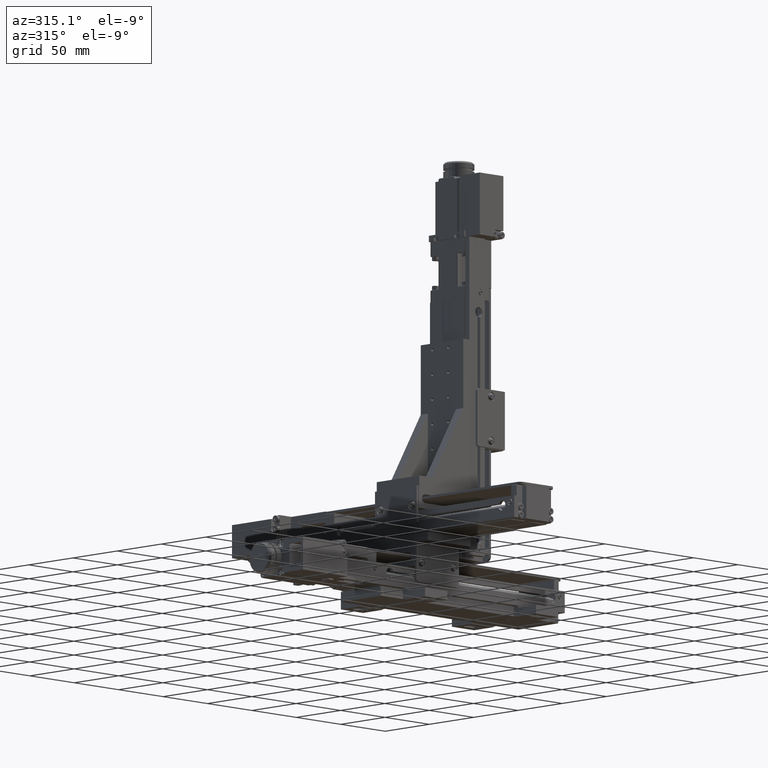
[diagram: clean part render]
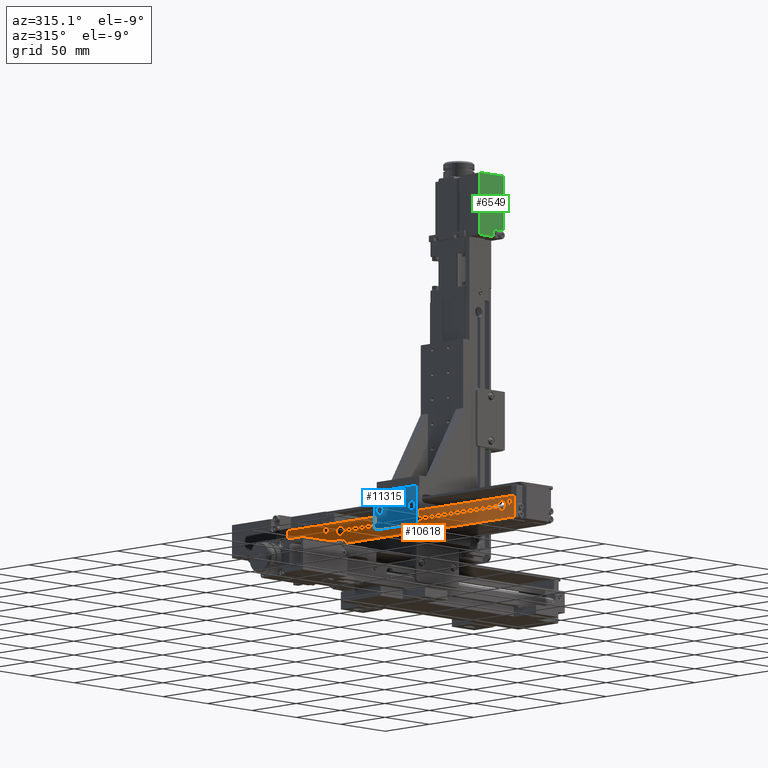
[diagram: same view with three faces highlighted in distinct colors, each labeled with its STEP entity id]
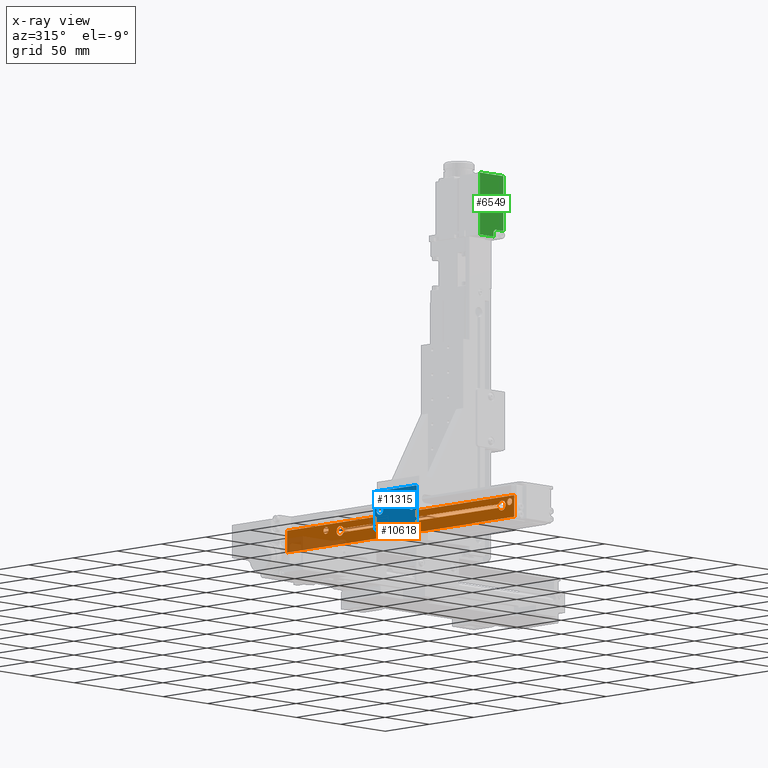
[diagram: x-ray of the same camera — body ghosted, the three highlighted faces saturated]
A machine part, auxiliary view with three faces highlighted in distinct colors.
The next image is the same camera in x-ray (body ghosted, the three faces saturated) — at least one of them is partly hidden behind the body in this view.
Their STEP definitions:

[orange] entity #10618 — the highlighted planar face has unit normal (-1, 0, 0).
#473=FACE_BOUND('',#24601,.T.);
#474=FACE_BOUND('',#24602,.T.);
#475=FACE_BOUND('',#24603,.T.);
#4760=PLANE('',#124229);
#10618=ADVANCED_FACE('',(#17380,#473,#474,#475),#4760,.T.);
#17380=FACE_OUTER_BOUND('',#24600,.T.);
#24600=EDGE_LOOP('',(#56074,#56075,#56076,#56077));
#24601=EDGE_LOOP('',(#56078,#56079,#56080,#56081));
#24602=EDGE_LOOP('',(#56082,#56083,#56084,#56085));
#24603=EDGE_LOOP('',(#56086,#56087,#56088,#56089));
#56074=ORIENTED_EDGE('',*,*,#80792,.T.);
#56075=ORIENTED_EDGE('',*,*,#80771,.F.);
#56076=ORIENTED_EDGE('',*,*,#80736,.F.);
#56077=ORIENTED_EDGE('',*,*,#80793,.T.);
#56078=ORIENTED_EDGE('',*,*,#80788,.T.);
#56079=ORIENTED_EDGE('',*,*,#80780,.T.);
#56080=ORIENTED_EDGE('',*,*,#80791,.T.);
#56081=ORIENTED_EDGE('',*,*,#80784,.T.);
#56082=ORIENTED_EDGE('',*,*,#80806,.T.);
#56083=ORIENTED_EDGE('',*,*,#84481,.T.);
#56084=ORIENTED_EDGE('',*,*,#80805,.T.);
#56085=ORIENTED_EDGE('',*,*,#80804,.T.);
#56086=ORIENTED_EDGE('',*,*,#80796,.T.);
#56087=ORIENTED_EDGE('',*,*,#84475,.T.);
#56088=ORIENTED_EDGE('',*,*,#80795,.T.);
#56089=ORIENTED_EDGE('',*,*,#80794,.T.);
#80736=EDGE_CURVE('',#114865,#114866,#95508,.T.);
#80771=EDGE_CURVE('',#114866,#114900,#95537,.T.);
#80780=EDGE_CURVE('',#114909,#114908,#95546,.T.);
#80784=EDGE_CURVE('',#114913,#114912,#95550,.T.);
#80788=EDGE_CURVE('',#114912,#114909,#102543,.T.);
#80791=EDGE_CURVE('',#114908,#114913,#102546,.T.);
#80792=EDGE_CURVE('',#114916,#114900,#95554,.T.);
#80793=EDGE_CURVE('',#114865,#114916,#95555,.T.);
#80794=EDGE_CURVE('',#114923,#114920,#102547,.T.);
#80795=EDGE_CURVE('',#114919,#114923,#102548,.T.);
#80796=EDGE_CURVE('',#114920,#117153,#102549,.T.);
#80804=EDGE_CURVE('',#114927,#114918,#102555,.T.);
#80805=EDGE_CURVE('',#114917,#114927,#102556,.T.);
#80806=EDGE_CURVE('',#114918,#117157,#102557,.T.);
#84475=EDGE_CURVE('',#117153,#114919,#104129,.T.);
#84481=EDGE_CURVE('',#117157,#114917,#104133,.T.);
#95508=B_SPLINE_CURVE_WITH_KNOTS('',1,(#216697,#216698),.UNSPECIFIED.,.F.,
 .F.,(2,2),(0.,17.5),.UNSPECIFIED.);
#95537=B_SPLINE_CURVE_WITH_KNOTS('',1,(#216773,#216774),.UNSPECIFIED.,.F.,
 .F.,(2,2),(0.,256.6),.UNSPECIFIED.);
#95546=B_SPLINE_CURVE_WITH_KNOTS('',1,(#216791,#216792),.UNSPECIFIED.,.F.,
 .F.,(2,2),(-175.283801512904,0.),.UNSPECIFIED.);
#95550=B_SPLINE_CURVE_WITH_KNOTS('',1,(#216799,#216800),.UNSPECIFIED.,.F.,
 .F.,(2,2),(-175.283801512904,0.),.UNSPECIFIED.);
#95554=B_SPLINE_CURVE_WITH_KNOTS('',1,(#216843,#216844),.UNSPECIFIED.,.F.,
 .F.,(2,2),(0.,17.5),.UNSPECIFIED.);
#95555=B_SPLINE_CURVE_WITH_KNOTS('',1,(#216845,#216846),.UNSPECIFIED.,.F.,
 .F.,(2,2),(0.,256.6),.UNSPECIFIED.);
#102543=(
BOUNDED_CURVE()
B_SPLINE_CURVE(2,(#216807,#216808,#216809,#216810,#216811,#216812,#216813,
#216814,#216815),.UNSPECIFIED.,.F.,.F.)
B_SPLINE_CURVE_WITH_KNOTS((3,2,2,2,3),(-22.0575670327613,-16.543175274571,
-11.0287835163807,-5.51439175819033,0.),.UNSPECIFIED.)
CURVE()
GEOMETRIC_REPRESENTATION_ITEM()
RATIONAL_B_SPLINE_CURVE((1.,0.771692057253676,1.,0.771692057253676,1.,0.771692057253676,
1.,0.771692057253676,1.))
REPRESENTATION_ITEM('')
);
#102546=(
BOUNDED_CURVE()
B_SPLINE_CURVE(2,(#216834,#216835,#216836,#216837,#216838,#216839,#216840,
#216841,#216842),.UNSPECIFIED.,.F.,.F.)
B_SPLINE_CURVE_WITH_KNOTS((3,2,2,2,3),(-22.0575670327542,-16.5431752745656,
-11.0287835163771,-5.51439175818855,0.),.UNSPECIFIED.)
CURVE()
GEOMETRIC_REPRESENTATION_ITEM()
RATIONAL_B_SPLINE_CURVE((1.,0.771692057253692,1.,0.771692057253692,1.,0.771692057253692,
1.,0.771692057253692,1.))
REPRESENTATION_ITEM('')
);
#102547=(
BOUNDED_CURVE()
B_SPLINE_CURVE(2,(#216847,#216848,#216849),.UNSPECIFIED.,.F.,.F.)
B_SPLINE_CURVE_WITH_KNOTS((3,3),(-4.3196898986861,0.),.UNSPECIFIED.)
CURVE()
GEOMETRIC_REPRESENTATION_ITEM()
RATIONAL_B_SPLINE_CURVE((1.,0.70710678118653,1.))
REPRESENTATION_ITEM('')
);
#102548=(
BOUNDED_CURVE()
B_SPLINE_CURVE(2,(#216850,#216851,#216852),.UNSPECIFIED.,.F.,.F.)
B_SPLINE_CURVE_WITH_KNOTS((3,3),(-8.63937979737191,-4.3196898986861),
 .UNSPECIFIED.)
CURVE()
GEOMETRIC_REPRESENTATION_ITEM()
RATIONAL_B_SPLINE_CURVE((1.,0.707106781186565,1.))
REPRESENTATION_ITEM('')
);
#102549=(
BOUNDED_CURVE()
B_SPLINE_CURVE(2,(#216853,#216854,#216855),.UNSPECIFIED.,.F.,.F.)
B_SPLINE_CURVE_WITH_KNOTS((3,3),(-8.63937979737191,-4.31968989868577),
 .UNSPECIFIED.)
CURVE()
GEOMETRIC_REPRESENTATION_ITEM()
RATIONAL_B_SPLINE_CURVE((1.,0.707106781186523,1.))
REPRESENTATION_ITEM('')
);
#102555=(
BOUNDED_CURVE()
B_SPLINE_CURVE(2,(#216879,#216880,#216881),.UNSPECIFIED.,.F.,.F.)
B_SPLINE_CURVE_WITH_KNOTS((3,3),(-4.31968989868591,0.),.UNSPECIFIED.)
CURVE()
GEOMETRIC_REPRESENTATION_ITEM()
RATIONAL_B_SPLINE_CURVE((1.,0.707106781186549,1.))
REPRESENTATION_ITEM('')
);
#102556=(
BOUNDED_CURVE()
B_SPLINE_CURVE(2,(#216882,#216883,#216884),.UNSPECIFIED.,.F.,.F.)
B_SPLINE_CURVE_WITH_KNOTS((3,3),(-8.63937979737184,-4.31968989868591),
 .UNSPECIFIED.)
CURVE()
GEOMETRIC_REPRESENTATION_ITEM()
RATIONAL_B_SPLINE_CURVE((1.,0.707106781186562,1.))
REPRESENTATION_ITEM('')
);
#102557=(
BOUNDED_CURVE()
B_SPLINE_CURVE(2,(#216885,#216886,#216887),.UNSPECIFIED.,.F.,.F.)
B_SPLINE_CURVE_WITH_KNOTS((3,3),(-8.63937979737203,-4.31968989868608),
 .UNSPECIFIED.)
CURVE()
GEOMETRIC_REPRESENTATION_ITEM()
RATIONAL_B_SPLINE_CURVE((1.,0.707106781186556,1.))
REPRESENTATION_ITEM('')
);
#104129=(
BOUNDED_CURVE()
B_SPLINE_CURVE(2,(#228689,#228690,#228691),.UNSPECIFIED.,.F.,.F.)
B_SPLINE_CURVE_WITH_KNOTS((3,3),(-4.31968989868577,0.),.UNSPECIFIED.)
CURVE()
GEOMETRIC_REPRESENTATION_ITEM()
RATIONAL_B_SPLINE_CURVE((1.,0.70710678118657,1.))
REPRESENTATION_ITEM('')
);
#104133=(
BOUNDED_CURVE()
B_SPLINE_CURVE(2,(#228709,#228710,#228711),.UNSPECIFIED.,.F.,.F.)
B_SPLINE_CURVE_WITH_KNOTS((3,3),(-4.31968989868608,0.),.UNSPECIFIED.)
CURVE()
GEOMETRIC_REPRESENTATION_ITEM()
RATIONAL_B_SPLINE_CURVE((1.,0.707106781186539,1.))
REPRESENTATION_ITEM('')
);
#114865=VERTEX_POINT('',#169859);
#114866=VERTEX_POINT('',#169860);
#114900=VERTEX_POINT('',#169894);
#114908=VERTEX_POINT('',#169902);
#114909=VERTEX_POINT('',#169903);
#114912=VERTEX_POINT('',#169906);
#114913=VERTEX_POINT('',#169907);
#114916=VERTEX_POINT('',#169910);
#114917=VERTEX_POINT('',#169911);
#114918=VERTEX_POINT('',#169912);
#114919=VERTEX_POINT('',#169913);
#114920=VERTEX_POINT('',#169914);
#114923=VERTEX_POINT('',#169917);
#114927=VERTEX_POINT('',#169921);
#117153=VERTEX_POINT('',#172147);
#117157=VERTEX_POINT('',#172151);
#124229=AXIS2_PLACEMENT_3D('',#150448,#130404,$);
#130404=DIRECTION('',(-1.,0.,0.));
#150448=CARTESIAN_POINT('',(-11.4439077799889,123.730004365953,53.8290205352363));
#169859=CARTESIAN_POINT('',(-11.4439077799894,97.9500043659523,55.699020535246));
#169860=CARTESIAN_POINT('',(-11.4439077799889,97.9500043659513,73.199020535246));
#169894=CARTESIAN_POINT('',(-11.4439077799941,-158.649995634049,73.1990205352372));
#169902=CARTESIAN_POINT('',(-11.4439077799938,-140.941896390501,67.8690205352378));
#169903=CARTESIAN_POINT('',(-11.4439077799903,34.3419051224033,67.8690205352439));
#169906=CARTESIAN_POINT('',(-11.4439077799904,34.3419051224033,64.8690205352439));
#169907=CARTESIAN_POINT('',(-11.443907779994,-140.941896390501,64.8690205352378));
#169910=CARTESIAN_POINT('',(-11.4439077799945,-158.649995634048,55.6990205352372));
#169911=CARTESIAN_POINT('',(-11.4439077799899,51.4000043659513,68.4990205352444));
#169912=CARTESIAN_POINT('',(-11.4439077799898,56.9000043659513,68.4990205352446));
#169913=CARTESIAN_POINT('',(-11.4439077799941,-156.099995634048,68.4990205352373));
#169914=CARTESIAN_POINT('',(-11.443907779994,-150.599995634048,68.4990205352375));
#169917=CARTESIAN_POINT('',(-11.4439077799942,-153.349995634048,65.7490205352374));
#169921=CARTESIAN_POINT('',(-11.4439077799899,54.1500043659515,65.7490205352445));
#172147=CARTESIAN_POINT('',(-11.443907779994,-153.349995634049,71.2490205352374));
#172151=CARTESIAN_POINT('',(-11.4439077799898,54.1500043659513,71.2490205352445));
#216697=CARTESIAN_POINT('',(-11.4439077799894,97.9500043659523,55.699020535246));
#216698=CARTESIAN_POINT('',(-11.4439077799889,97.9500043659513,73.199020535246));
#216773=CARTESIAN_POINT('',(-11.4439077799889,97.9500043659513,73.199020535246));
#216774=CARTESIAN_POINT('',(-11.4439077799941,-158.649995634049,73.1990205352372));
#216791=CARTESIAN_POINT('',(-11.4439077799903,34.3419051224033,67.8690205352439));
#216792=CARTESIAN_POINT('',(-11.4439077799938,-140.941896390501,67.8690205352378));
#216799=CARTESIAN_POINT('',(-11.443907779994,-140.941896390501,64.8690205352378));
#216800=CARTESIAN_POINT('',(-11.4439077799904,34.3419051224033,64.8690205352439));
#216807=CARTESIAN_POINT('',(-11.4439077799904,34.3419051224033,64.8690205352439));
#216808=CARTESIAN_POINT('',(-11.4439077799904,35.5781424656063,61.8129600304585));
#216809=CARTESIAN_POINT('',(-11.4439077799903,38.81407341578,62.4426738252467));
#216810=CARTESIAN_POINT('',(-11.4439077799901,42.0500043659537,63.072387620035));
#216811=CARTESIAN_POINT('',(-11.44390777999,42.0500043659537,66.3690205352439));
#216812=CARTESIAN_POINT('',(-11.4439077799899,42.0500043659537,69.6656534504528));
#216813=CARTESIAN_POINT('',(-11.44390777999,38.81407341578,70.295367245241));
#216814=CARTESIAN_POINT('',(-11.4439077799902,35.5781424656063,70.9250810400293));
#216815=CARTESIAN_POINT('',(-11.4439077799903,34.3419051224033,67.8690205352439));
#216834=CARTESIAN_POINT('',(-11.4439077799938,-140.941896390501,67.8690205352378));
#216835=CARTESIAN_POINT('',(-11.4439077799938,-142.178133733704,70.9250810400221));
#216836=CARTESIAN_POINT('',(-11.443907779994,-145.414064683876,70.2953672452337));
#216837=CARTESIAN_POINT('',(-11.4439077799942,-148.649995634049,69.6656534504454));
#216838=CARTESIAN_POINT('',(-11.4439077799943,-148.649995634049,66.3690205352375));
#216839=CARTESIAN_POINT('',(-11.4439077799944,-148.649995634049,63.0723876200297));
#216840=CARTESIAN_POINT('',(-11.4439077799943,-145.414064683876,62.4426738252415));
#216841=CARTESIAN_POINT('',(-11.4439077799941,-142.178133733703,61.8129600304534));
#216842=CARTESIAN_POINT('',(-11.443907779994,-140.941896390501,64.8690205352378));
#216843=CARTESIAN_POINT('',(-11.4439077799945,-158.649995634048,55.6990205352372));
#216844=CARTESIAN_POINT('',(-11.4439077799941,-158.649995634049,73.1990205352372));
#216845=CARTESIAN_POINT('',(-11.4439077799894,97.9500043659523,55.699020535246));
#216846=CARTESIAN_POINT('',(-11.4439077799945,-158.649995634048,55.6990205352372));
#216847=CARTESIAN_POINT('',(-11.4439077799941,-153.349995634048,65.7490205352374));
#216848=CARTESIAN_POINT('',(-11.4439077799941,-150.599995634048,65.7490205352373));
#216849=CARTESIAN_POINT('',(-11.443907779994,-150.599995634048,68.4990205352375));
#216850=CARTESIAN_POINT('',(-11.4439077799941,-156.099995634048,68.4990205352372));
#216851=CARTESIAN_POINT('',(-11.4439077799942,-156.099995634048,65.7490205352374));
#216852=CARTESIAN_POINT('',(-11.4439077799941,-153.349995634048,65.7490205352374));
#216853=CARTESIAN_POINT('',(-11.443907779994,-150.599995634048,68.4990205352375));
#216854=CARTESIAN_POINT('',(-11.443907779994,-150.599995634048,71.2490205352376));
#216855=CARTESIAN_POINT('',(-11.443907779994,-153.349995634049,71.2490205352374));
#216879=CARTESIAN_POINT('',(-11.4439077799899,54.1500043659514,65.7490205352445));
#216880=CARTESIAN_POINT('',(-11.4439077799899,56.9000043659514,65.7490205352446));
#216881=CARTESIAN_POINT('',(-11.4439077799898,56.9000043659513,68.4990205352446));
#216882=CARTESIAN_POINT('',(-11.4439077799899,51.4000043659513,68.4990205352444));
#216883=CARTESIAN_POINT('',(-11.44390777999,51.4000043659515,65.7490205352444));
#216884=CARTESIAN_POINT('',(-11.4439077799899,54.1500043659515,65.7490205352445));
#216885=CARTESIAN_POINT('',(-11.4439077799898,56.9000043659514,68.4990205352446));
#216886=CARTESIAN_POINT('',(-11.4439077799897,56.9000043659513,71.2490205352445));
#216887=CARTESIAN_POINT('',(-11.4439077799898,54.1500043659513,71.2490205352445));
#228689=CARTESIAN_POINT('',(-11.443907779994,-153.349995634049,71.2490205352374));
#228690=CARTESIAN_POINT('',(-11.4439077799941,-156.099995634048,71.2490205352371));
#228691=CARTESIAN_POINT('',(-11.4439077799941,-156.099995634048,68.4990205352373));
#228709=CARTESIAN_POINT('',(-11.4439077799898,54.1500043659513,71.2490205352445));
#228710=CARTESIAN_POINT('',(-11.4439077799898,51.4000043659512,71.2490205352445));
#228711=CARTESIAN_POINT('',(-11.4439077799899,51.4000043659513,68.4990205352444));

[blue] entity #11315 — the highlighted planar face has unit normal (-1, 0, 0).
#570=FACE_BOUND('',#25395,.T.);
#571=FACE_BOUND('',#25396,.T.);
#5229=PLANE('',#124884);
#11315=ADVANCED_FACE('',(#18077,#570,#571),#5229,.T.);
#18077=FACE_OUTER_BOUND('',#25394,.T.);
#25394=EDGE_LOOP('',(#60047,#60048,#60049,#60050,#60051,#60052));
#25395=EDGE_LOOP('',(#60053,#60054,#60055,#60056));
#25396=EDGE_LOOP('',(#60057,#60058,#60059,#60060));
#60047=ORIENTED_EDGE('',*,*,#82742,.F.);
#60048=ORIENTED_EDGE('',*,*,#82749,.T.);
#60049=ORIENTED_EDGE('',*,*,#82750,.T.);
#60050=ORIENTED_EDGE('',*,*,#82751,.T.);
#60051=ORIENTED_EDGE('',*,*,#82753,.T.);
#60052=ORIENTED_EDGE('',*,*,#82746,.F.);
#60053=ORIENTED_EDGE('',*,*,#82780,.T.);
#60054=ORIENTED_EDGE('',*,*,#82779,.T.);
#60055=ORIENTED_EDGE('',*,*,#82778,.T.);
#60056=ORIENTED_EDGE('',*,*,#84712,.T.);
#60057=ORIENTED_EDGE('',*,*,#82773,.T.);
#60058=ORIENTED_EDGE('',*,*,#82772,.T.);
#60059=ORIENTED_EDGE('',*,*,#82771,.T.);
#60060=ORIENTED_EDGE('',*,*,#84709,.T.);
#82742=EDGE_CURVE('',#116121,#116122,#103167,.T.);
#82746=EDGE_CURVE('',#116122,#116125,#96886,.T.);
#82749=EDGE_CURVE('',#116121,#116127,#96889,.T.);
#82750=EDGE_CURVE('',#116127,#116128,#96890,.T.);
#82751=EDGE_CURVE('',#116128,#116129,#96891,.T.);
#82753=EDGE_CURVE('',#116129,#116125,#103170,.T.);
#82771=EDGE_CURVE('',#116132,#117286,#103171,.T.);
#82772=EDGE_CURVE('',#116145,#116132,#103172,.T.);
#82773=EDGE_CURVE('',#116133,#116145,#103173,.T.);
#82778=EDGE_CURVE('',#116130,#117288,#103177,.T.);
#82779=EDGE_CURVE('',#116151,#116130,#103178,.T.);
#82780=EDGE_CURVE('',#116131,#116151,#103179,.T.);
#84709=EDGE_CURVE('',#117286,#116133,#104271,.T.);
#84712=EDGE_CURVE('',#117288,#116131,#104273,.T.);
#96886=B_SPLINE_CURVE_WITH_KNOTS('',1,(#222807,#222808),.UNSPECIFIED.,.F.,
 .F.,(2,2),(0.,43.),.UNSPECIFIED.);
#96889=B_SPLINE_CURVE_WITH_KNOTS('',1,(#222813,#222814),.UNSPECIFIED.,.F.,
 .F.,(2,2),(0.,28.9),.UNSPECIFIED.);
#96890=B_SPLINE_CURVE_WITH_KNOTS('',1,(#222815,#222816),.UNSPECIFIED.,.F.,
 .F.,(2,2),(0.,47.),.UNSPECIFIED.);
#96891=B_SPLINE_CURVE_WITH_KNOTS('',1,(#222817,#222818),.UNSPECIFIED.,.F.,
 .F.,(2,2),(0.,28.9),.UNSPECIFIED.);
#103167=(
BOUNDED_CURVE()
B_SPLINE_CURVE(2,(#222797,#222798,#222799),.UNSPECIFIED.,.F.,.F.)
B_SPLINE_CURVE_WITH_KNOTS((3,3),(0.,3.14159265358979),.UNSPECIFIED.)
CURVE()
GEOMETRIC_REPRESENTATION_ITEM()
RATIONAL_B_SPLINE_CURVE((1.,0.707106781186548,1.))
REPRESENTATION_ITEM('')
);
#103170=(
BOUNDED_CURVE()
B_SPLINE_CURVE(2,(#222822,#222823,#222824),.UNSPECIFIED.,.F.,.F.)
B_SPLINE_CURVE_WITH_KNOTS((3,3),(-3.1415926535898,0.),.UNSPECIFIED.)
CURVE()
GEOMETRIC_REPRESENTATION_ITEM()
RATIONAL_B_SPLINE_CURVE((1.,0.707106781186549,1.))
REPRESENTATION_ITEM('')
);
#103171=(
BOUNDED_CURVE()
B_SPLINE_CURVE(2,(#222859,#222860,#222861),.UNSPECIFIED.,.F.,.F.)
B_SPLINE_CURVE_WITH_KNOTS((3,3),(-11.7809724509617,-5.89048622548087),
 .UNSPECIFIED.)
CURVE()
GEOMETRIC_REPRESENTATION_ITEM()
RATIONAL_B_SPLINE_CURVE((1.,0.707106781186548,1.))
REPRESENTATION_ITEM('')
);
#103172=(
BOUNDED_CURVE()
B_SPLINE_CURVE(2,(#222862,#222863,#222864),.UNSPECIFIED.,.F.,.F.)
B_SPLINE_CURVE_WITH_KNOTS((3,3),(-5.89048622548088,0.),.UNSPECIFIED.)
CURVE()
GEOMETRIC_REPRESENTATION_ITEM()
RATIONAL_B_SPLINE_CURVE((1.,0.707106781186546,1.))
REPRESENTATION_ITEM('')
);
#103173=(
BOUNDED_CURVE()
B_SPLINE_CURVE(2,(#222865,#222866,#222867),.UNSPECIFIED.,.F.,.F.)
B_SPLINE_CURVE_WITH_KNOTS((3,3),(-11.7809724509617,-5.89048622548088),
 .UNSPECIFIED.)
CURVE()
GEOMETRIC_REPRESENTATION_ITEM()
RATIONAL_B_SPLINE_CURVE((1.,0.707106781186555,1.))
REPRESENTATION_ITEM('')
);
#103177=(
BOUNDED_CURVE()
B_SPLINE_CURVE(2,(#222879,#222880,#222881),.UNSPECIFIED.,.F.,.F.)
B_SPLINE_CURVE_WITH_KNOTS((3,3),(-11.7809724509617,-5.89048622548097),
 .UNSPECIFIED.)
CURVE()
GEOMETRIC_REPRESENTATION_ITEM()
RATIONAL_B_SPLINE_CURVE((1.,0.707106781186557,1.))
REPRESENTATION_ITEM('')
);
#103178=(
BOUNDED_CURVE()
B_SPLINE_CURVE(2,(#222882,#222883,#222884),.UNSPECIFIED.,.F.,.F.)
B_SPLINE_CURVE_WITH_KNOTS((3,3),(-5.89048622548078,0.),.UNSPECIFIED.)
CURVE()
GEOMETRIC_REPRESENTATION_ITEM()
RATIONAL_B_SPLINE_CURVE((1.,0.707106781186555,1.))
REPRESENTATION_ITEM('')
);
#103179=(
BOUNDED_CURVE()
B_SPLINE_CURVE(2,(#222885,#222886,#222887),.UNSPECIFIED.,.F.,.F.)
B_SPLINE_CURVE_WITH_KNOTS((3,3),(-11.7809724509617,-5.89048622548078),
 .UNSPECIFIED.)
CURVE()
GEOMETRIC_REPRESENTATION_ITEM()
RATIONAL_B_SPLINE_CURVE((1.,0.70710678118654,1.))
REPRESENTATION_ITEM('')
);
#104271=(
BOUNDED_CURVE()
B_SPLINE_CURVE(2,(#229605,#229606,#229607),.UNSPECIFIED.,.F.,.F.)
B_SPLINE_CURVE_WITH_KNOTS((3,3),(-5.89048622548087,0.),.UNSPECIFIED.)
CURVE()
GEOMETRIC_REPRESENTATION_ITEM()
RATIONAL_B_SPLINE_CURVE((1.,0.707106781186547,1.))
REPRESENTATION_ITEM('')
);
#104273=(
BOUNDED_CURVE()
B_SPLINE_CURVE(2,(#229613,#229614,#229615),.UNSPECIFIED.,.F.,.F.)
B_SPLINE_CURVE_WITH_KNOTS((3,3),(-5.89048622548097,0.),.UNSPECIFIED.)
CURVE()
GEOMETRIC_REPRESENTATION_ITEM()
RATIONAL_B_SPLINE_CURVE((1.,0.707106781186538,1.))
REPRESENTATION_ITEM('')
);
#116121=VERTEX_POINT('',#171115);
#116122=VERTEX_POINT('',#171116);
#116125=VERTEX_POINT('',#171119);
#116127=VERTEX_POINT('',#171121);
#116128=VERTEX_POINT('',#171122);
#116129=VERTEX_POINT('',#171123);
#116130=VERTEX_POINT('',#171124);
#116131=VERTEX_POINT('',#171125);
#116132=VERTEX_POINT('',#171126);
#116133=VERTEX_POINT('',#171127);
#116145=VERTEX_POINT('',#171139);
#116151=VERTEX_POINT('',#171145);
#117286=VERTEX_POINT('',#172280);
#117288=VERTEX_POINT('',#172282);
#124884=AXIS2_PLACEMENT_3D('',#153575,#131059,$);
#131059=DIRECTION('',(-1.,0.,0.));
#153575=CARTESIAN_POINT('',(-14.2439077799919,0.697622026280651,58.7880205352396));
#171115=CARTESIAN_POINT('',(-14.2439077799927,-51.1223779737216,63.9980205352399));
#171116=CARTESIAN_POINT('',(-14.2439077799927,-49.1223779737214,61.99802053524));
#171119=CARTESIAN_POINT('',(-14.243907779992,-6.12237797372146,61.9980205352423));
#171121=CARTESIAN_POINT('',(-14.2439077799922,-51.122377973723,92.8980205352399));
#171122=CARTESIAN_POINT('',(-14.2439077799913,-4.12237797372305,92.8980205352424));
#171123=CARTESIAN_POINT('',(-14.243907779992,-4.12237797372157,63.9980205352424));
#171124=CARTESIAN_POINT('',(-14.2439077799924,-49.3723779737223,77.49802053524));
#171125=CARTESIAN_POINT('',(-14.2439077799923,-41.8723779737223,77.4980205352404));
#171126=CARTESIAN_POINT('',(-14.2439077799918,-13.3723779737223,77.4980205352419));
#171127=CARTESIAN_POINT('',(-14.2439077799917,-5.87237797372225,77.4980205352423));
#171139=CARTESIAN_POINT('',(-14.2439077799917,-9.62237797372244,81.2480205352421));
#171145=CARTESIAN_POINT('',(-14.2439077799923,-45.6223779737225,81.2480205352402));
#172280=CARTESIAN_POINT('',(-14.2439077799919,-9.62237797372206,73.7480205352421));
#172282=CARTESIAN_POINT('',(-14.2439077799925,-45.6223779737222,73.7480205352402));
#222797=CARTESIAN_POINT('',(-14.2439077799927,-51.1223779737215,63.9980205352399));
#222798=CARTESIAN_POINT('',(-14.2439077799928,-51.1223779737214,61.9980205352399));
#222799=CARTESIAN_POINT('',(-14.2439077799927,-49.1223779737214,61.99802053524));
#222807=CARTESIAN_POINT('',(-14.2439077799927,-49.1223779737214,61.99802053524));
#222808=CARTESIAN_POINT('',(-14.243907779992,-6.12237797372146,61.9980205352423));
#222813=CARTESIAN_POINT('',(-14.2439077799927,-51.1223779737216,63.9980205352399));
#222814=CARTESIAN_POINT('',(-14.2439077799922,-51.122377973723,92.8980205352399));
#222815=CARTESIAN_POINT('',(-14.2439077799922,-51.122377973723,92.8980205352399));
#222816=CARTESIAN_POINT('',(-14.2439077799913,-4.12237797372305,92.8980205352424));
#222817=CARTESIAN_POINT('',(-14.2439077799913,-4.12237797372305,92.8980205352424));
#222818=CARTESIAN_POINT('',(-14.243907779992,-4.12237797372157,63.9980205352424));
#222822=CARTESIAN_POINT('',(-14.243907779992,-4.12237797372156,63.9980205352424));
#222823=CARTESIAN_POINT('',(-14.243907779992,-4.12237797372146,61.9980205352424));
#222824=CARTESIAN_POINT('',(-14.2439077799921,-6.12237797372146,61.9980205352422));
#222859=CARTESIAN_POINT('',(-14.2439077799918,-13.3723779737223,77.4980205352419));
#222860=CARTESIAN_POINT('',(-14.2439077799919,-13.3723779737221,73.7480205352419));
#222861=CARTESIAN_POINT('',(-14.2439077799919,-9.62237797372206,73.7480205352421));
#222862=CARTESIAN_POINT('',(-14.2439077799917,-9.62237797372244,81.2480205352421));
#222863=CARTESIAN_POINT('',(-14.2439077799918,-13.3723779737225,81.2480205352419));
#222864=CARTESIAN_POINT('',(-14.2439077799918,-13.3723779737223,77.4980205352419));
#222865=CARTESIAN_POINT('',(-14.2439077799917,-5.87237797372225,77.4980205352423));
#222866=CARTESIAN_POINT('',(-14.2439077799917,-5.87237797372248,81.2480205352422));
#222867=CARTESIAN_POINT('',(-14.2439077799917,-9.62237797372244,81.2480205352421));
#222879=CARTESIAN_POINT('',(-14.2439077799924,-49.3723779737223,77.49802053524));
#222880=CARTESIAN_POINT('',(-14.2439077799925,-49.3723779737221,73.7480205352401));
#222881=CARTESIAN_POINT('',(-14.2439077799925,-45.6223779737222,73.7480205352402));
#222882=CARTESIAN_POINT('',(-14.2439077799923,-45.6223779737225,81.2480205352402));
#222883=CARTESIAN_POINT('',(-14.2439077799924,-49.3723779737225,81.2480205352399));
#222884=CARTESIAN_POINT('',(-14.2439077799924,-49.3723779737223,77.49802053524));
#222885=CARTESIAN_POINT('',(-14.2439077799923,-41.8723779737223,77.4980205352404));
#222886=CARTESIAN_POINT('',(-14.2439077799923,-41.8723779737225,81.2480205352404));
#222887=CARTESIAN_POINT('',(-14.2439077799923,-45.6223779737225,81.2480205352402));
#229605=CARTESIAN_POINT('',(-14.2439077799919,-9.62237797372206,73.7480205352421));
#229606=CARTESIAN_POINT('',(-14.2439077799918,-5.87237797372205,73.7480205352423));
#229607=CARTESIAN_POINT('',(-14.2439077799918,-5.87237797372225,77.4980205352423));
#229613=CARTESIAN_POINT('',(-14.2439077799925,-45.6223779737222,73.7480205352402));
#229614=CARTESIAN_POINT('',(-14.2439077799924,-41.872377973722,73.7480205352402));
#229615=CARTESIAN_POINT('',(-14.2439077799923,-41.8723779737223,77.4980205352404));

[green] entity #6549 — the highlighted planar face has unit normal (0, -1, 0).
#1965=PLANE('',#120416);
#6549=ADVANCED_FACE('',(#13311),#1965,.T.);
#13311=FACE_OUTER_BOUND('',#20122,.T.);
#20122=EDGE_LOOP('',(#32818,#32819,#32820,#32821,#32822,#32823,#32824));
#32818=ORIENTED_EDGE('',*,*,#68774,.T.);
#32819=ORIENTED_EDGE('',*,*,#68772,.T.);
#32820=ORIENTED_EDGE('',*,*,#68767,.T.);
#32821=ORIENTED_EDGE('',*,*,#68777,.F.);
#32822=ORIENTED_EDGE('',*,*,#68781,.T.);
#32823=ORIENTED_EDGE('',*,*,#68782,.T.);
#32824=ORIENTED_EDGE('',*,*,#68783,.T.);
#68767=EDGE_CURVE('',#106732,#106733,#87271,.T.);
#68772=EDGE_CURVE('',#106737,#106732,#98806,.T.);
#68774=EDGE_CURVE('',#106738,#106737,#87276,.T.);
#68777=EDGE_CURVE('',#106740,#106733,#87279,.T.);
#68781=EDGE_CURVE('',#106740,#106742,#87283,.T.);
#68782=EDGE_CURVE('',#106742,#106743,#87284,.T.);
#68783=EDGE_CURVE('',#106743,#106738,#87285,.T.);
#87271=B_SPLINE_CURVE_WITH_KNOTS('',1,(#182092,#182093),.UNSPECIFIED.,.F.,
 .F.,(2,2),(-8.24999999999877,0.),.UNSPECIFIED.);
#87276=B_SPLINE_CURVE_WITH_KNOTS('',1,(#182108,#182109),.UNSPECIFIED.,.F.,
 .F.,(2,2),(-2.75,0.),.UNSPECIFIED.);
#87279=B_SPLINE_CURVE_WITH_KNOTS('',1,(#182114,#182115),.UNSPECIFIED.,.F.,
 .F.,(2,2),(0.,44.25),.UNSPECIFIED.);
#87283=B_SPLINE_CURVE_WITH_KNOTS('',1,(#182122,#182123),.UNSPECIFIED.,.F.,
 .F.,(2,2),(0.,26.7),.UNSPECIFIED.);
#87284=B_SPLINE_CURVE_WITH_KNOTS('',1,(#182124,#182125),.UNSPECIFIED.,.F.,
 .F.,(2,2),(0.,50.),.UNSPECIFIED.);
#87285=B_SPLINE_CURVE_WITH_KNOTS('',1,(#182126,#182127),.UNSPECIFIED.,.F.,
 .F.,(2,2),(0.,15.4500000000013),.UNSPECIFIED.);
#98806=(
BOUNDED_CURVE()
B_SPLINE_CURVE(2,(#182103,#182104,#182105),.UNSPECIFIED.,.F.,.F.)
B_SPLINE_CURVE_WITH_KNOTS((3,3),(-4.71238898038472,0.),.UNSPECIFIED.)
CURVE()
GEOMETRIC_REPRESENTATION_ITEM()
RATIONAL_B_SPLINE_CURVE((1.,0.70710678118654,1.))
REPRESENTATION_ITEM('')
);
#106732=VERTEX_POINT('',#161726);
#106733=VERTEX_POINT('',#161727);
#106737=VERTEX_POINT('',#161731);
#106738=VERTEX_POINT('',#161732);
#106740=VERTEX_POINT('',#161734);
#106742=VERTEX_POINT('',#161736);
#106743=VERTEX_POINT('',#161737);
#120416=AXIS2_PLACEMENT_3D('',#135506,#126591,$);
#126591=DIRECTION('',(0.,-1.,0.));
#135506=CARTESIAN_POINT('',(43.2660922200086,-61.922377973727,295.878020535237));
#161726=CARTESIAN_POINT('',(64.5060922200105,-61.9223779737276,306.748020535237));
#161727=CARTESIAN_POINT('',(72.7560922200093,-61.922377973728,306.748020535237));
#161731=CARTESIAN_POINT('',(61.5060922200105,-61.9223779737275,303.748020535237));
#161732=CARTESIAN_POINT('',(61.5060922200105,-61.9223779737275,300.998020535237));
#161734=CARTESIAN_POINT('',(72.7560922200097,-61.9223779737282,350.998020535237));
#161736=CARTESIAN_POINT('',(46.0560922200097,-61.9223779737274,350.998020535238));
#161737=CARTESIAN_POINT('',(46.0560922200092,-61.9223779737272,300.998020535238));
#182092=CARTESIAN_POINT('',(64.5060922200105,-61.9223779737276,306.748020535237));
#182093=CARTESIAN_POINT('',(72.7560922200093,-61.922377973728,306.748020535237));
#182103=CARTESIAN_POINT('',(61.5060922200105,-61.9223779737275,303.748020535237));
#182104=CARTESIAN_POINT('',(61.5060922200105,-61.9223779737276,306.748020535237));
#182105=CARTESIAN_POINT('',(64.5060922200105,-61.9223779737276,306.748020535237));
#182108=CARTESIAN_POINT('',(61.5060922200105,-61.9223779737275,300.998020535237));
#182109=CARTESIAN_POINT('',(61.5060922200105,-61.9223779737275,303.748020535237));
#182114=CARTESIAN_POINT('',(72.7560922200097,-61.9223779737282,350.998020535237));
#182115=CARTESIAN_POINT('',(72.7560922200093,-61.922377973728,306.748020535237));
#182122=CARTESIAN_POINT('',(72.7560922200097,-61.9223779737282,350.998020535237));
#182123=CARTESIAN_POINT('',(46.0560922200097,-61.9223779737274,350.998020535238));
#182124=CARTESIAN_POINT('',(46.0560922200097,-61.9223779737274,350.998020535238));
#182125=CARTESIAN_POINT('',(46.0560922200092,-61.9223779737272,300.998020535238));
#182126=CARTESIAN_POINT('',(46.0560922200092,-61.9223779737272,300.998020535238));
#182127=CARTESIAN_POINT('',(61.5060922200105,-61.9223779737275,300.998020535237));